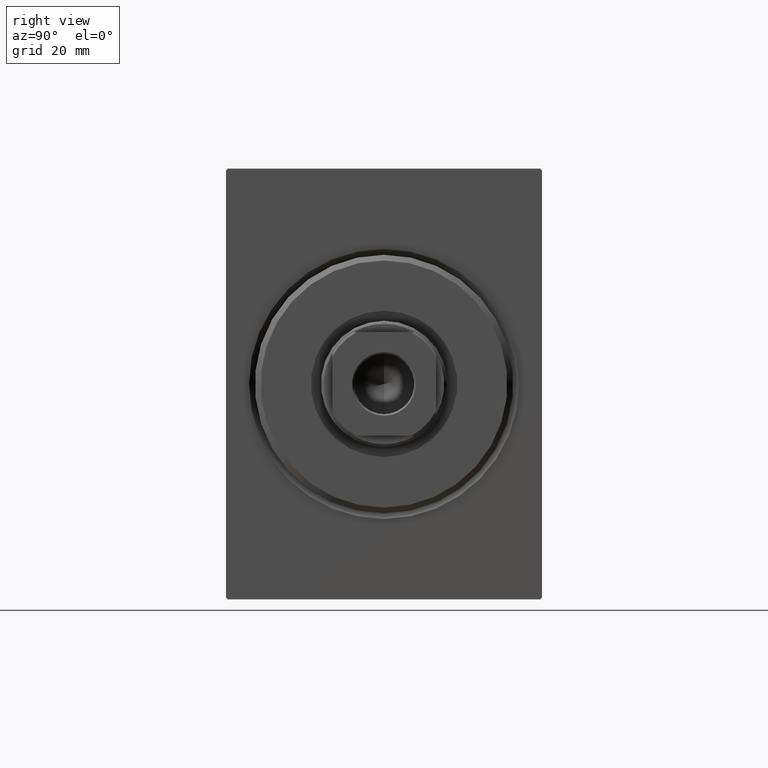
[diagram: clean part render]
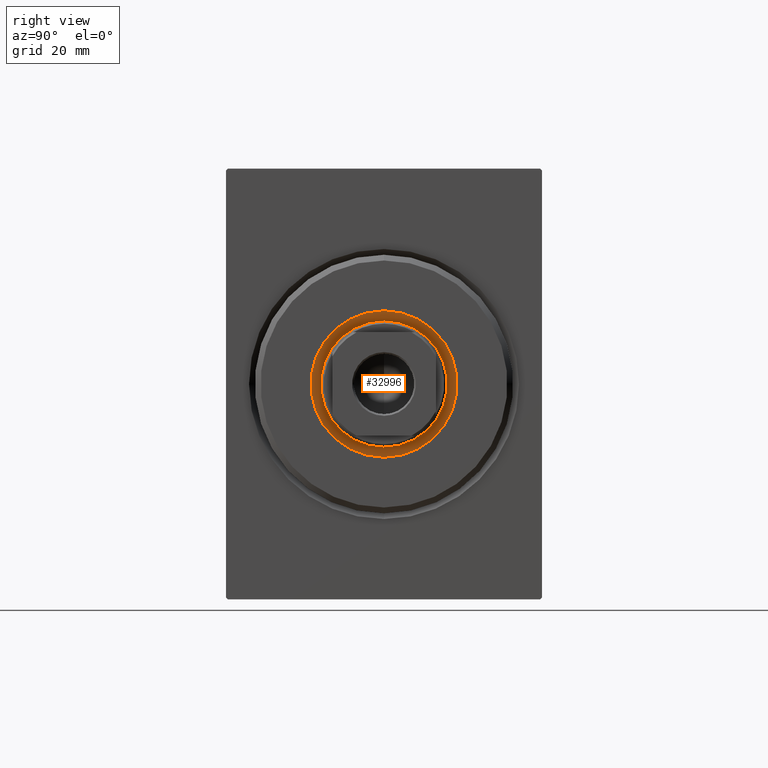
[diagram: same view with one face highlighted and labeled with its STEP entity id]
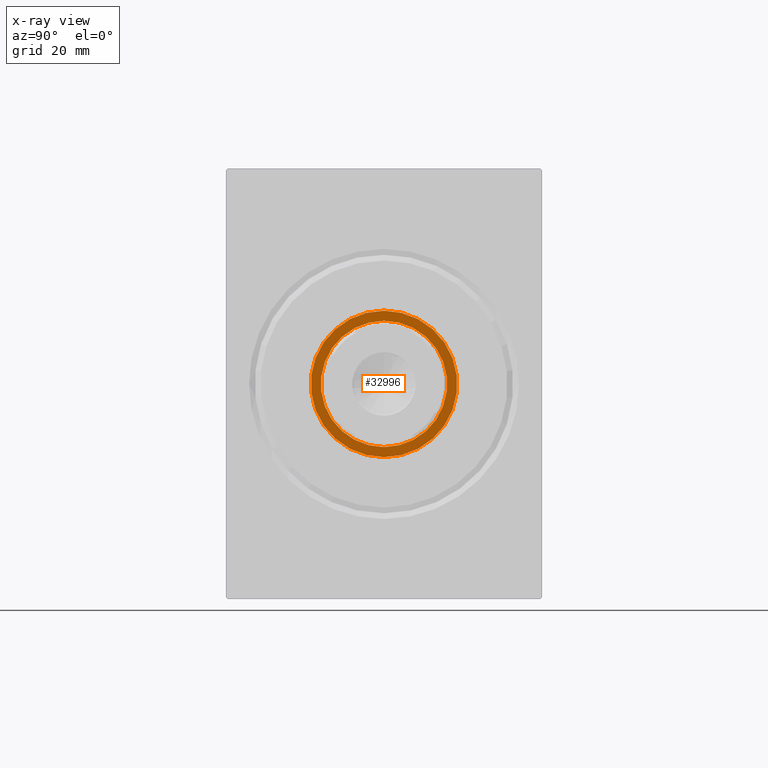
[diagram: x-ray of the same camera — body ghosted, the highlighted face saturated]
A machine part, right view. The second image highlights one B-rep face of the part: STEP entity #32996.
The next image is the same camera in x-ray: the body ghosted, the highlighted face saturated — about 0% of this face is hidden behind the body in this view.
In plain terms, the highlighted planar face has unit normal (1, 0, 0).
Its self-contained STEP definition (entity closure, byte-faithful):
#481 = VERTEX_POINT ( 'NONE', #21271 ) ;
#1601 = CARTESIAN_POINT ( 'NONE',  ( 1.499999999999999556, 0.000000000000000000, -11.00000000000000000 ) ) ;
#2035 = DIRECTION ( 'NONE',  ( 0.000000000000000000, 0.000000000000000000, -1.000000000000000000 ) ) ;
#2288 = CARTESIAN_POINT ( 'NONE',  ( 1.499999999999999556, 1.347111479062088405E-15, 11.00000000000000000 ) ) ;
#3660 = CARTESIAN_POINT ( 'NONE',  ( 1.500000000000000000, 0.000000000000000000, 0.000000000000000000 ) ) ;
#5278 = CARTESIAN_POINT ( 'NONE',  ( 1.499999999999999556, 0.000000000000000000, 0.000000000000000000 ) ) ;
#5354 = EDGE_CURVE ( 'NONE', #7481, #16907, #23041, .T. ) ;
#6488 = DIRECTION ( 'NONE',  ( 1.000000000000000000, 0.000000000000000000, 0.000000000000000000 ) ) ;
#7026 = ORIENTED_EDGE ( 'NONE', *, *, #37620, .F. ) ;
#7046 = AXIS2_PLACEMENT_3D ( 'NONE', #16436, #10376, #13184 ) ;
#7481 = VERTEX_POINT ( 'NONE', #2288 ) ;
#8880 = PLANE ( 'NONE',  #34029 ) ;
#9038 = ORIENTED_EDGE ( 'NONE', *, *, #20360, .T. ) ;
#9522 = DIRECTION ( 'NONE',  ( 0.000000000000000000, 0.000000000000000000, -1.000000000000000000 ) ) ;
#10376 = DIRECTION ( 'NONE',  ( 1.000000000000000000, 0.000000000000000000, 0.000000000000000000 ) ) ;
#12114 = FACE_OUTER_BOUND ( 'NONE', #35833, .T. ) ;
#12551 = DIRECTION ( 'NONE',  ( 1.000000000000000000, 0.000000000000000000, 0.000000000000000000 ) ) ;
#13098 = AXIS2_PLACEMENT_3D ( 'NONE', #3660, #6488, #19669 ) ;
#13184 = DIRECTION ( 'NONE',  ( 0.000000000000000000, 0.000000000000000000, -1.000000000000000000 ) ) ;
#13275 = ORIENTED_EDGE ( 'NONE', *, *, #5354, .F. ) ;
#13455 = CARTESIAN_POINT ( 'NONE',  ( 1.500000000000000000, 0.000000000000000000, 12.75000000000000000 ) ) ;
#14258 = DIRECTION ( 'NONE',  ( 0.000000000000000000, 0.000000000000000000, -1.000000000000000000 ) ) ;
#14743 = AXIS2_PLACEMENT_3D ( 'NONE', #37170, #31313, #14258 ) ;
#16436 = CARTESIAN_POINT ( 'NONE',  ( 1.500000000000000000, 0.000000000000000000, 0.000000000000000000 ) ) ;
#16907 = VERTEX_POINT ( 'NONE', #1601 ) ;
#19314 = CIRCLE ( 'NONE', #13098, 12.75000000000000000 ) ;
#19669 = DIRECTION ( 'NONE',  ( 0.000000000000000000, 0.000000000000000000, -1.000000000000000000 ) ) ;
#20360 = EDGE_CURVE ( 'NONE', #481, #30685, #19314, .T. ) ;
#21271 = CARTESIAN_POINT ( 'NONE',  ( 1.500000000000000000, 1.561424668912874914E-15, -12.75000000000000000 ) ) ;
#22060 = CARTESIAN_POINT ( 'NONE',  ( 1.500000000000000000, 0.000000000000000000, 0.000000000000000000 ) ) ;
#23041 = CIRCLE ( 'NONE', #14743, 11.00000000000000000 ) ;
#23734 = AXIS2_PLACEMENT_3D ( 'NONE', #5278, #31633, #2035 ) ;
#25636 = CIRCLE ( 'NONE', #7046, 12.75000000000000000 ) ;
#25713 = EDGE_CURVE ( 'NONE', #30685, #481, #25636, .T. ) ;
#30656 = CIRCLE ( 'NONE', #23734, 11.00000000000000000 ) ;
#30676 = ORIENTED_EDGE ( 'NONE', *, *, #25713, .T. ) ;
#30685 = VERTEX_POINT ( 'NONE', #13455 ) ;
#30776 = EDGE_LOOP ( 'NONE', ( #7026, #13275 ) ) ;
#31313 = DIRECTION ( 'NONE',  ( 1.000000000000000000, 0.000000000000000000, 0.000000000000000000 ) ) ;
#31633 = DIRECTION ( 'NONE',  ( 1.000000000000000000, 0.000000000000000000, 0.000000000000000000 ) ) ;
#32996 = ADVANCED_FACE ( 'NONE', ( #35028, #12114 ), #8880, .T. ) ;
#34029 = AXIS2_PLACEMENT_3D ( 'NONE', #22060, #12551, #9522 ) ;
#35028 = FACE_BOUND ( 'NONE', #30776, .T. ) ;
#35833 = EDGE_LOOP ( 'NONE', ( #30676, #9038 ) ) ;
#37170 = CARTESIAN_POINT ( 'NONE',  ( 1.499999999999999556, 0.000000000000000000, 0.000000000000000000 ) ) ;
#37620 = EDGE_CURVE ( 'NONE', #16907, #7481, #30656, .T. ) ;